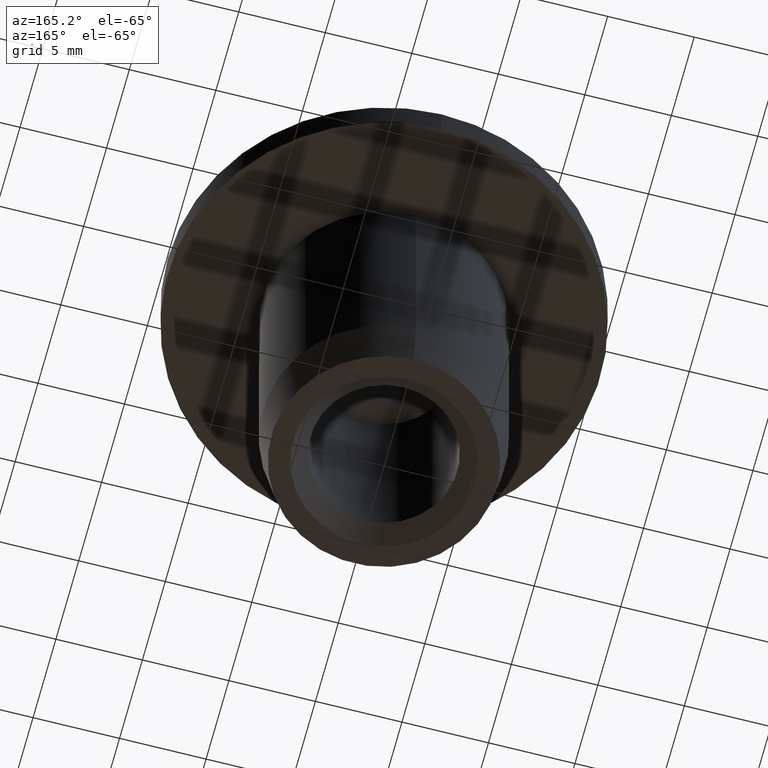
[diagram: clean part render]
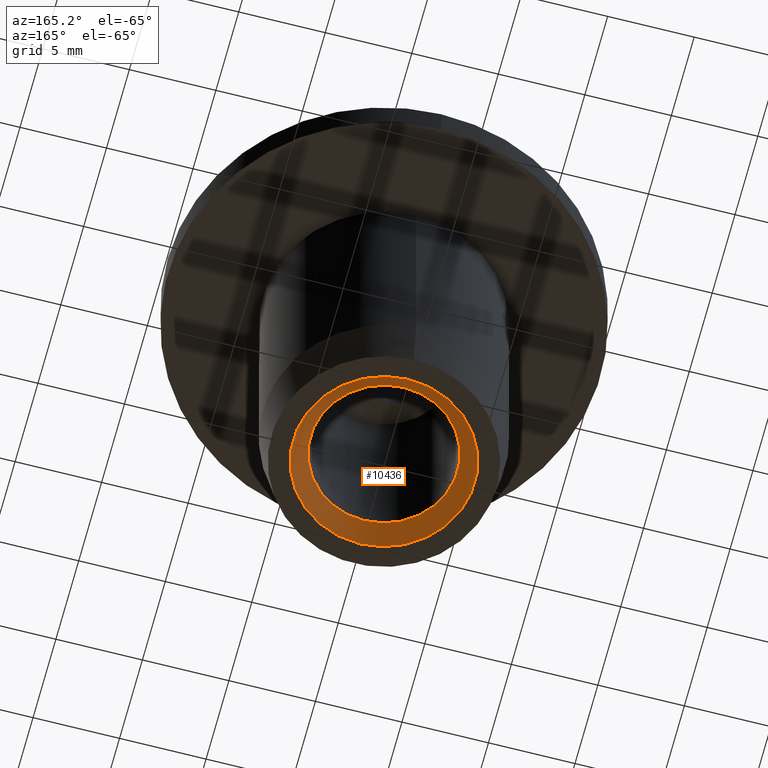
[diagram: same view with one face highlighted and labeled with its STEP entity id]
A machine part, auxiliary view. The second image highlights one B-rep face of the part: STEP entity #10436.
In plain terms, the highlighted conical surface has half-angle 45 deg.
Its self-contained STEP definition (entity closure, byte-faithful):
#850 = EDGE_LOOP ( 'NONE', ( #6009 ) ) ;
#1279 = ORIENTED_EDGE ( 'NONE', *, *, #15434, .F. ) ;
#2133 = FACE_BOUND ( 'NONE', #850, .T. ) ;
#2391 = AXIS2_PLACEMENT_3D ( 'NONE', #5576, #8084, #6747 ) ;
#3416 = CARTESIAN_POINT ( 'NONE',  ( 0.000000000000000000, 5.250000000000000000, -10.24999999999999822 ) ) ;
#3495 = DIRECTION ( 'NONE',  ( 0.000000000000000000, -2.332352011257933532E-16, 1.000000000000000000 ) ) ;
#3564 = VERTEX_POINT ( 'NONE', #7371 ) ;
#4441 = AXIS2_PLACEMENT_3D ( 'NONE', #7361, #13305, #12127 ) ;
#5576 = CARTESIAN_POINT ( 'NONE',  ( 0.000000000000000000, 2.136270446072408891E-15, -9.250000000000005329 ) ) ;
#6009 = ORIENTED_EDGE ( 'NONE', *, *, #11662, .F. ) ;
#6747 = DIRECTION ( 'NONE',  ( 0.000000000000000000, 1.000000000000000000, 4.081702296416019941E-16 ) ) ;
#7361 = CARTESIAN_POINT ( 'NONE',  ( 0.000000000000000000, 2.136270446072408497E-15, -9.250000000000003553 ) ) ;
#7371 = CARTESIAN_POINT ( 'NONE',  ( 0.000000000000000000, 4.249999999999998224, -9.250000000000003553 ) ) ;
#8084 = DIRECTION ( 'NONE',  ( 0.000000000000000000, 2.543903654669739155E-16, -1.000000000000000000 ) ) ;
#9326 = CONICAL_SURFACE ( 'NONE', #4441, 4.249999999999996447, 0.7853981633974504994 ) ;
#9944 = DIRECTION ( 'NONE',  ( 0.000000000000000000, 1.000000000000000000, 3.304235192336776991E-16 ) ) ;
#10436 = ADVANCED_FACE ( 'NONE', ( #13304, #2133 ), #9326, .F. ) ;
#11085 = CARTESIAN_POINT ( 'NONE',  ( 0.000000000000000000, 2.390660811539381525E-15, -10.25000000000000000 ) ) ;
#11662 = EDGE_CURVE ( 'NONE', #3564, #3564, #15315, .T. ) ;
#11904 = AXIS2_PLACEMENT_3D ( 'NONE', #11085, #3495, #9944 ) ;
#12127 = DIRECTION ( 'NONE',  ( 0.000000000000000000, 1.000000000000000000, 4.081702296416019941E-16 ) ) ;
#12937 = CIRCLE ( 'NONE', #11904, 5.249999999999997335 ) ;
#13304 = FACE_OUTER_BOUND ( 'NONE', #15207, .T. ) ;
#13305 = DIRECTION ( 'NONE',  ( 0.000000000000000000, 2.543903654669739155E-16, -1.000000000000000000 ) ) ;
#15207 = EDGE_LOOP ( 'NONE', ( #1279 ) ) ;
#15315 = CIRCLE ( 'NONE', #2391, 4.249999999999996447 ) ;
#15434 = EDGE_CURVE ( 'NONE', #15920, #15920, #12937, .T. ) ;
#15920 = VERTEX_POINT ( 'NONE', #3416 ) ;